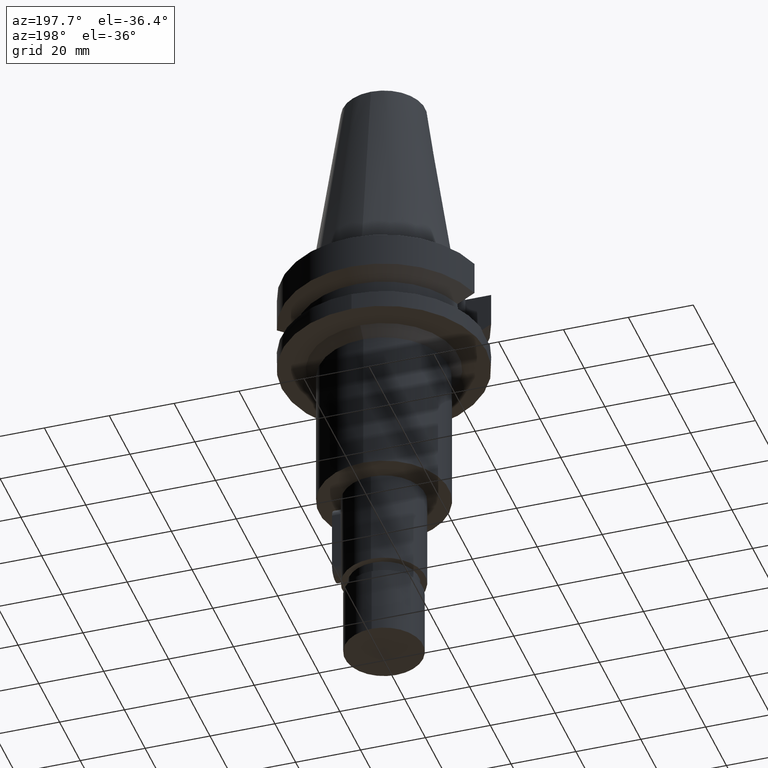
[diagram: clean part render]
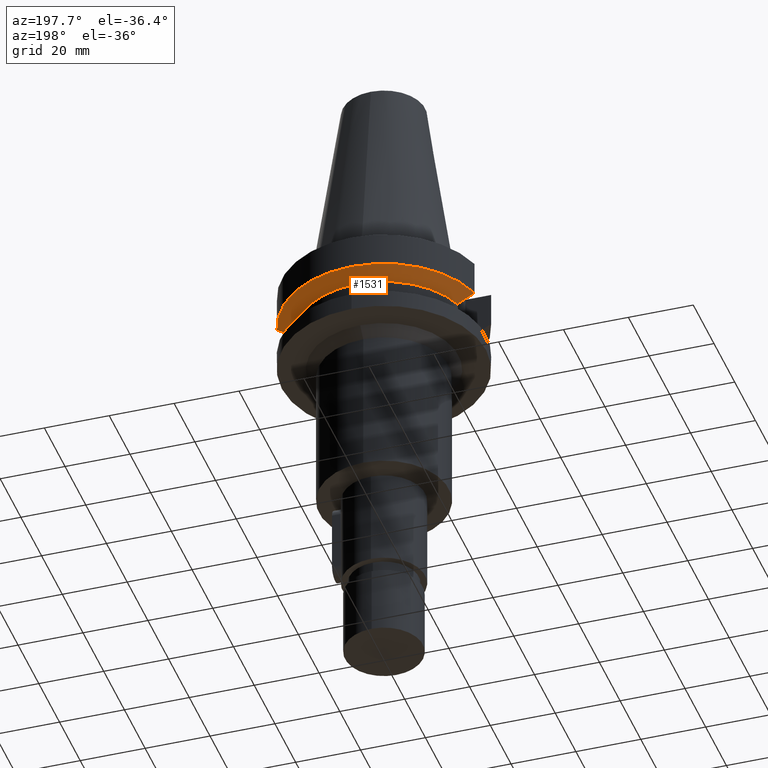
[diagram: same view with one face highlighted and labeled with its STEP entity id]
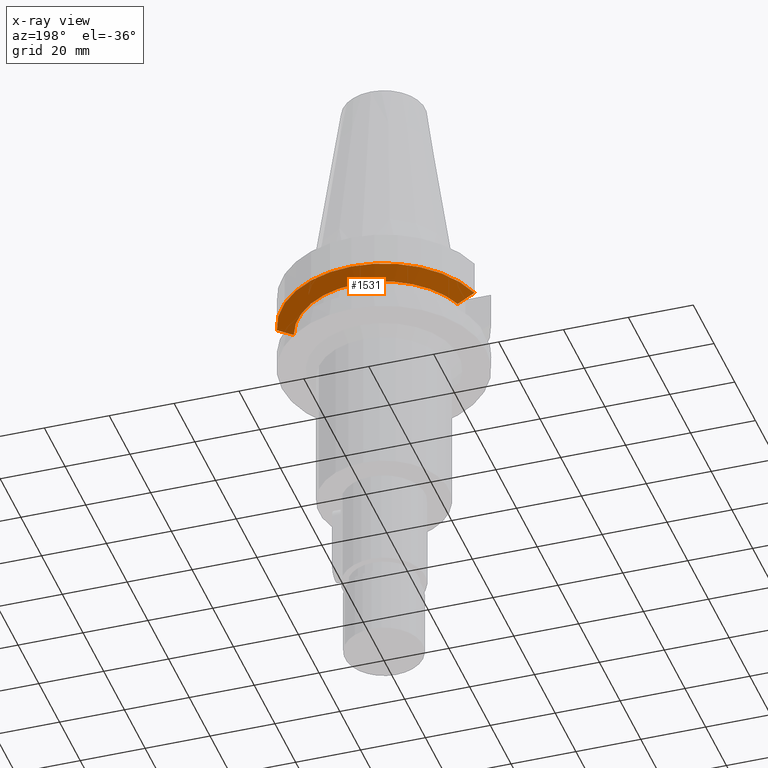
[diagram: x-ray of the same camera — body ghosted, the highlighted face saturated]
A machine part, auxiliary view. The second image highlights one B-rep face of the part: STEP entity #1531.
The next image is the same camera in x-ray: the body ghosted, the highlighted face saturated — about 0% of this face is hidden behind the body in this view.
In plain terms, the highlighted conical surface has half-angle 60 deg.
Its self-contained STEP definition (entity closure, byte-faithful):
#344=CARTESIAN_POINT('',(3.045402291368E1,8.049999277831E0,-1.156551215710E1));
#345=CARTESIAN_POINT('',(2.987645774313E1,8.049999277831E0,-1.188789690730E1));
#346=CARTESIAN_POINT('',(2.872091200003E1,8.049999725838E0,-1.253193851526E1));
#347=CARTESIAN_POINT('',(2.698538663297E1,8.050002042823E0,-1.349404338542E1));
#348=CARTESIAN_POINT('',(2.582730530170E1,8.049995416189E0,-1.413348340673E1));
#349=CARTESIAN_POINT('',(2.524772413108E1,8.049995416189E0,-1.445229202491E1));
#388=CARTESIAN_POINT('',(-2.524772216380E1,8.050001586296E0,-1.445224487791E1));
#389=CARTESIAN_POINT('',(-2.582727361629E1,8.050001586296E0,-1.413345268122E1));
#390=CARTESIAN_POINT('',(-2.698547393572E1,8.049999812212E0,-1.349419203607E1));
#391=CARTESIAN_POINT('',(-2.872100161579E1,8.049998277814E0,-1.253209180940E1));
#392=CARTESIAN_POINT('',(-2.987642831078E1,8.050004143626E0,-1.188786874861E1));
#393=CARTESIAN_POINT('',(-3.045402162749E1,8.050004143626E0,-1.156546832865E1));
#398=CARTESIAN_POINT('',(0.E0,1.065333950388E-14,-1.445225699861E1));
#399=DIRECTION('',(0.E0,0.E0,-1.E0));
#400=DIRECTION('',(-9.527442516822E-1,3.037735849057E-1,0.E0));
#401=AXIS2_PLACEMENT_3D('',#398,#399,#400);
#406=CARTESIAN_POINT('',(0.E0,1.065333950388E-14,-1.445225699861E1));
#407=DIRECTION('',(0.E0,0.E0,-1.E0));
#408=DIRECTION('',(0.E0,1.E0,0.E0));
#409=AXIS2_PLACEMENT_3D('',#406,#407,#408);
#414=CARTESIAN_POINT('',(0.E0,1.065333950388E-14,-1.156550565267E1));
#415=DIRECTION('',(0.E0,0.E0,1.E0));
#416=DIRECTION('',(9.667943721520E-1,2.555555555555E-1,0.E0));
#417=AXIS2_PLACEMENT_3D('',#414,#415,#416);
#422=CARTESIAN_POINT('',(0.E0,1.065333950388E-14,-1.156550565267E1));
#423=DIRECTION('',(0.E0,0.E0,1.E0));
#424=DIRECTION('',(0.E0,1.E0,0.E0));
#425=AXIS2_PLACEMENT_3D('',#422,#423,#424);
#1135=CARTESIAN_POINT('',(-2.524772216380E1,8.050001586296E0,
-1.445224487791E1));
#1137=VERTEX_POINT('',#1135);
#1145=CARTESIAN_POINT('',(2.524772413108E1,8.049995416189E0,-1.445229202491E1));
#1146=VERTEX_POINT('',#1145);
#1147=CARTESIAN_POINT('',(0.E0,2.65E1,-1.445225699861E1));
#1148=VERTEX_POINT('',#1147);
#1153=VERTEX_POINT('',#393);
#1154=VERTEX_POINT('',#344);
#1155=CARTESIAN_POINT('',(0.E0,3.15E1,-1.156550565267E1));
#1156=VERTEX_POINT('',#1155);
#1516=CARTESIAN_POINT('',(0.E0,1.065333950388E-14,-1.300888132564E1));
#1517=DIRECTION('',(0.E0,0.E0,1.E0));
#1518=DIRECTION('',(0.E0,1.E0,0.E0));
#1519=AXIS2_PLACEMENT_3D('',#1516,#1517,#1518);
#1520=CONICAL_SURFACE('',#1519,2.9E1,6.E1);
#1521=ORIENTED_EDGE('',*,*,#1505,.F.);
#1522=ORIENTED_EDGE('',*,*,#1494,.T.);
#1523=ORIENTED_EDGE('',*,*,#1492,.T.);
#1524=ORIENTED_EDGE('',*,*,#1471,.F.);
#1526=ORIENTED_EDGE('',*,*,#1525,.T.);
#1528=ORIENTED_EDGE('',*,*,#1527,.T.);
#1529=EDGE_LOOP('',(#1521,#1522,#1523,#1524,#1526,#1528));
#1530=FACE_OUTER_BOUND('',#1529,.F.);
#350=B_SPLINE_CURVE_WITH_KNOTS('',3,(#344,#345,#346,#347,#348,#349),
.UNSPECIFIED.,.F.,.F.,(4,1,1,4),(0.E0,3.333333333333E-1,6.666666666667E-1,1.E0),
.UNSPECIFIED.);
#394=B_SPLINE_CURVE_WITH_KNOTS('',3,(#388,#389,#390,#391,#392,#393),
.UNSPECIFIED.,.F.,.F.,(4,1,1,4),(0.E0,3.333333333333E-1,6.666666666667E-1,1.E0),
.UNSPECIFIED.);
#402=CIRCLE('',#401,2.65E1);
#410=CIRCLE('',#409,2.65E1);
#418=CIRCLE('',#417,3.15E1);
#426=CIRCLE('',#425,3.15E1);
#1471=EDGE_CURVE('',#1154,#1146,#350,.T.);
#1492=EDGE_CURVE('',#1148,#1146,#410,.T.);
#1494=EDGE_CURVE('',#1137,#1148,#402,.T.);
#1505=EDGE_CURVE('',#1137,#1153,#394,.T.);
#1525=EDGE_CURVE('',#1154,#1156,#418,.T.);
#1527=EDGE_CURVE('',#1156,#1153,#426,.T.);
#1531=ADVANCED_FACE('',(#1530),#1520,.T.);